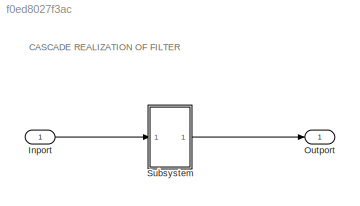
MODEL slx_f0ed8027f3ac
KIND model
CONFIG AbsTol = auto
CONFIG EnableMultiTasking = off
CONFIG FixedStep = auto
CONFIG MaxStep = auto
CONFIG MinStep = auto
CONFIG RelTol = 1e-3
CONFIG SampleTimeConstraint = Unconstrained
CONFIG SolverName = VariableStepAuto
CONFIG StartTime = 0.0
CONFIG StopTime = 10.0
BLOCK [Inport] Inport
BLOCK [Outport] Outport
BLOCK [ModelReference] Subsystem
  ModelNameDialog = Filter_cascade_model
  ModelReferenceVersion = 1.3
  Ports = [1, 1]
ANNOTATION (root): CASCADE REALIZATION OF FILTER
LINE Inport:1 -> Subsystem:1
LINE Subsystem:1 -> Outport:1
